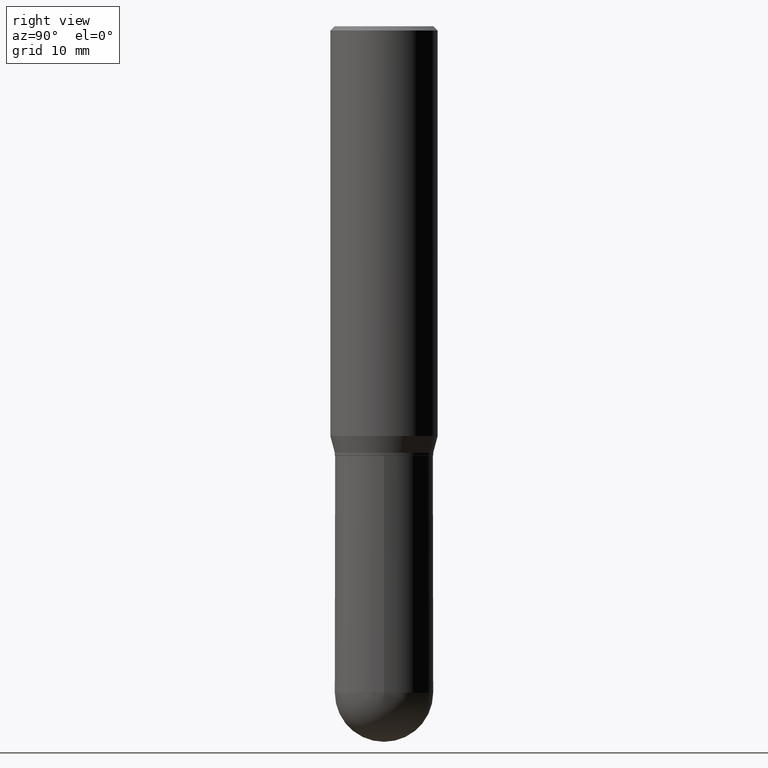
[diagram: clean part render]
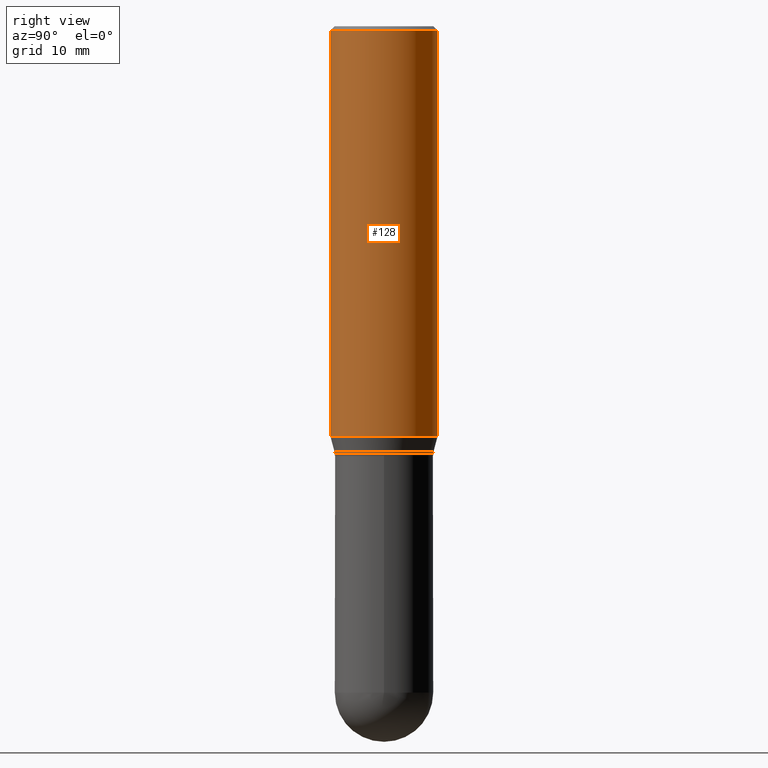
[diagram: same view with one face highlighted and labeled with its STEP entity id]
A machine part, right view. The second image highlights one B-rep face of the part: STEP entity #128.
In plain terms, the highlighted cylindrical surface (partial cylindrical patch) has radius 4.7625 mm, axis along (-0, 0, 1).
Its self-contained STEP definition (entity closure, byte-faithful):
#10 = CARTESIAN_POINT ( 'NONE',  ( 1.332267629550187651E-15, 0.1875000000000000278, -6.546841356113152012E-16 ) ) ;
#36 = CARTESIAN_POINT ( 'NONE',  ( -1.309305502066140101E-15, -0.1875000000000049960, -1.431780007401924903 ) ) ;
#46 = ORIENTED_EDGE ( 'NONE', *, *, #409, .T. ) ;
#54 = DIRECTION ( 'NONE',  ( -2.445351922271321948E-29, 3.491648723260347608E-15, 1.000000000000000000 ) ) ;
#56 = CARTESIAN_POINT ( 'NONE',  ( -1.309305502066175008E-15, -0.1875000000000000278, 6.546841356113152012E-16 ) ) ;
#73 = DIRECTION ( 'NONE',  ( -2.445351922271321948E-29, 3.491648723260347214E-15, 1.000000000000000000 ) ) ;
#86 = DIRECTION ( 'NONE',  ( -2.445351922271321948E-29, 3.491648723260347608E-15, 1.000000000000000000 ) ) ;
#91 = DIRECTION ( 'NONE',  ( -2.445351922271321948E-29, 3.491648723260347214E-15, 1.000000000000000000 ) ) ;
#101 = EDGE_LOOP ( 'NONE', ( #146, #46, #228, #492 ) ) ;
#128 = ADVANCED_FACE ( 'NONE', ( #150 ), #486, .T. ) ;
#131 = AXIS2_PLACEMENT_3D ( 'NONE', #407, #91, #326 ) ;
#132 = CIRCLE ( 'NONE', #331, 0.1875000000000000278 ) ;
#134 = CARTESIAN_POINT ( 'NONE',  ( 1.332267629550222558E-15, 0.1874999999999950318, -1.431780007401926014 ) ) ;
#146 = ORIENTED_EDGE ( 'NONE', *, *, #398, .T. ) ;
#150 = FACE_OUTER_BOUND ( 'NONE', #101, .T. ) ;
#159 = CARTESIAN_POINT ( 'NONE',  ( -1.309305502066174614E-15, -0.1875000000000000833, -0.01499999999999941137 ) ) ;
#189 = AXIS2_PLACEMENT_3D ( 'NONE', #264, #73, #301 ) ;
#195 = VERTEX_POINT ( 'NONE', #134 ) ;
#206 = LINE ( 'NONE', #10, #414 ) ;
#228 = ORIENTED_EDGE ( 'NONE', *, *, #342, .F. ) ;
#246 = CARTESIAN_POINT ( 'NONE',  ( 3.501205993369945932E-29, -4.999272834834623163E-15, -1.431780007401925348 ) ) ;
#264 = CARTESIAN_POINT ( 'NONE',  ( 3.668027883406999037E-31, -5.237473084890543500E-17, -0.01500000000000006710 ) ) ;
#271 = CIRCLE ( 'NONE', #189, 0.1875000000000000278 ) ;
#277 = VERTEX_POINT ( 'NONE', #318 ) ;
#301 = DIRECTION ( 'NONE',  ( -6.982962677686265922E-15, -1.000000000000000000, 3.494488891895536035E-15 ) ) ;
#318 = CARTESIAN_POINT ( 'NONE',  ( 1.332267629550222953E-15, 0.1874999999999999445, -0.01500000000000072109 ) ) ;
#326 = DIRECTION ( 'NONE',  ( -6.982962677686265922E-15, -1.000000000000000000, 3.491648723260347214E-15 ) ) ;
#331 = AXIS2_PLACEMENT_3D ( 'NONE', #246, #376, #362 ) ;
#342 = EDGE_CURVE ( 'NONE', #478, #277, #271, .T. ) ;
#362 = DIRECTION ( 'NONE',  ( -6.982962677686265922E-15, -1.000000000000000000, 2.913971193241880372E-15 ) ) ;
#367 = VECTOR ( 'NONE', #54, 39.37007874015748143 ) ;
#376 = DIRECTION ( 'NONE',  ( -2.445351922271321948E-29, 3.491648723260347214E-15, 1.000000000000000000 ) ) ;
#395 = VERTEX_POINT ( 'NONE', #36 ) ;
#398 = EDGE_CURVE ( 'NONE', #395, #195, #132, .T. ) ;
#407 = CARTESIAN_POINT ( 'NONE',  ( 0.000000000000000000, 0.000000000000000000, 0.000000000000000000 ) ) ;
#409 = EDGE_CURVE ( 'NONE', #195, #277, #206, .T. ) ;
#414 = VECTOR ( 'NONE', #86, 39.37007874015748143 ) ;
#451 = LINE ( 'NONE', #56, #367 ) ;
#478 = VERTEX_POINT ( 'NONE', #159 ) ;
#486 = CYLINDRICAL_SURFACE ( 'NONE', #131, 0.1875000000000000278 ) ;
#492 = ORIENTED_EDGE ( 'NONE', *, *, #494, .F. ) ;
#494 = EDGE_CURVE ( 'NONE', #395, #478, #451, .T. ) ;